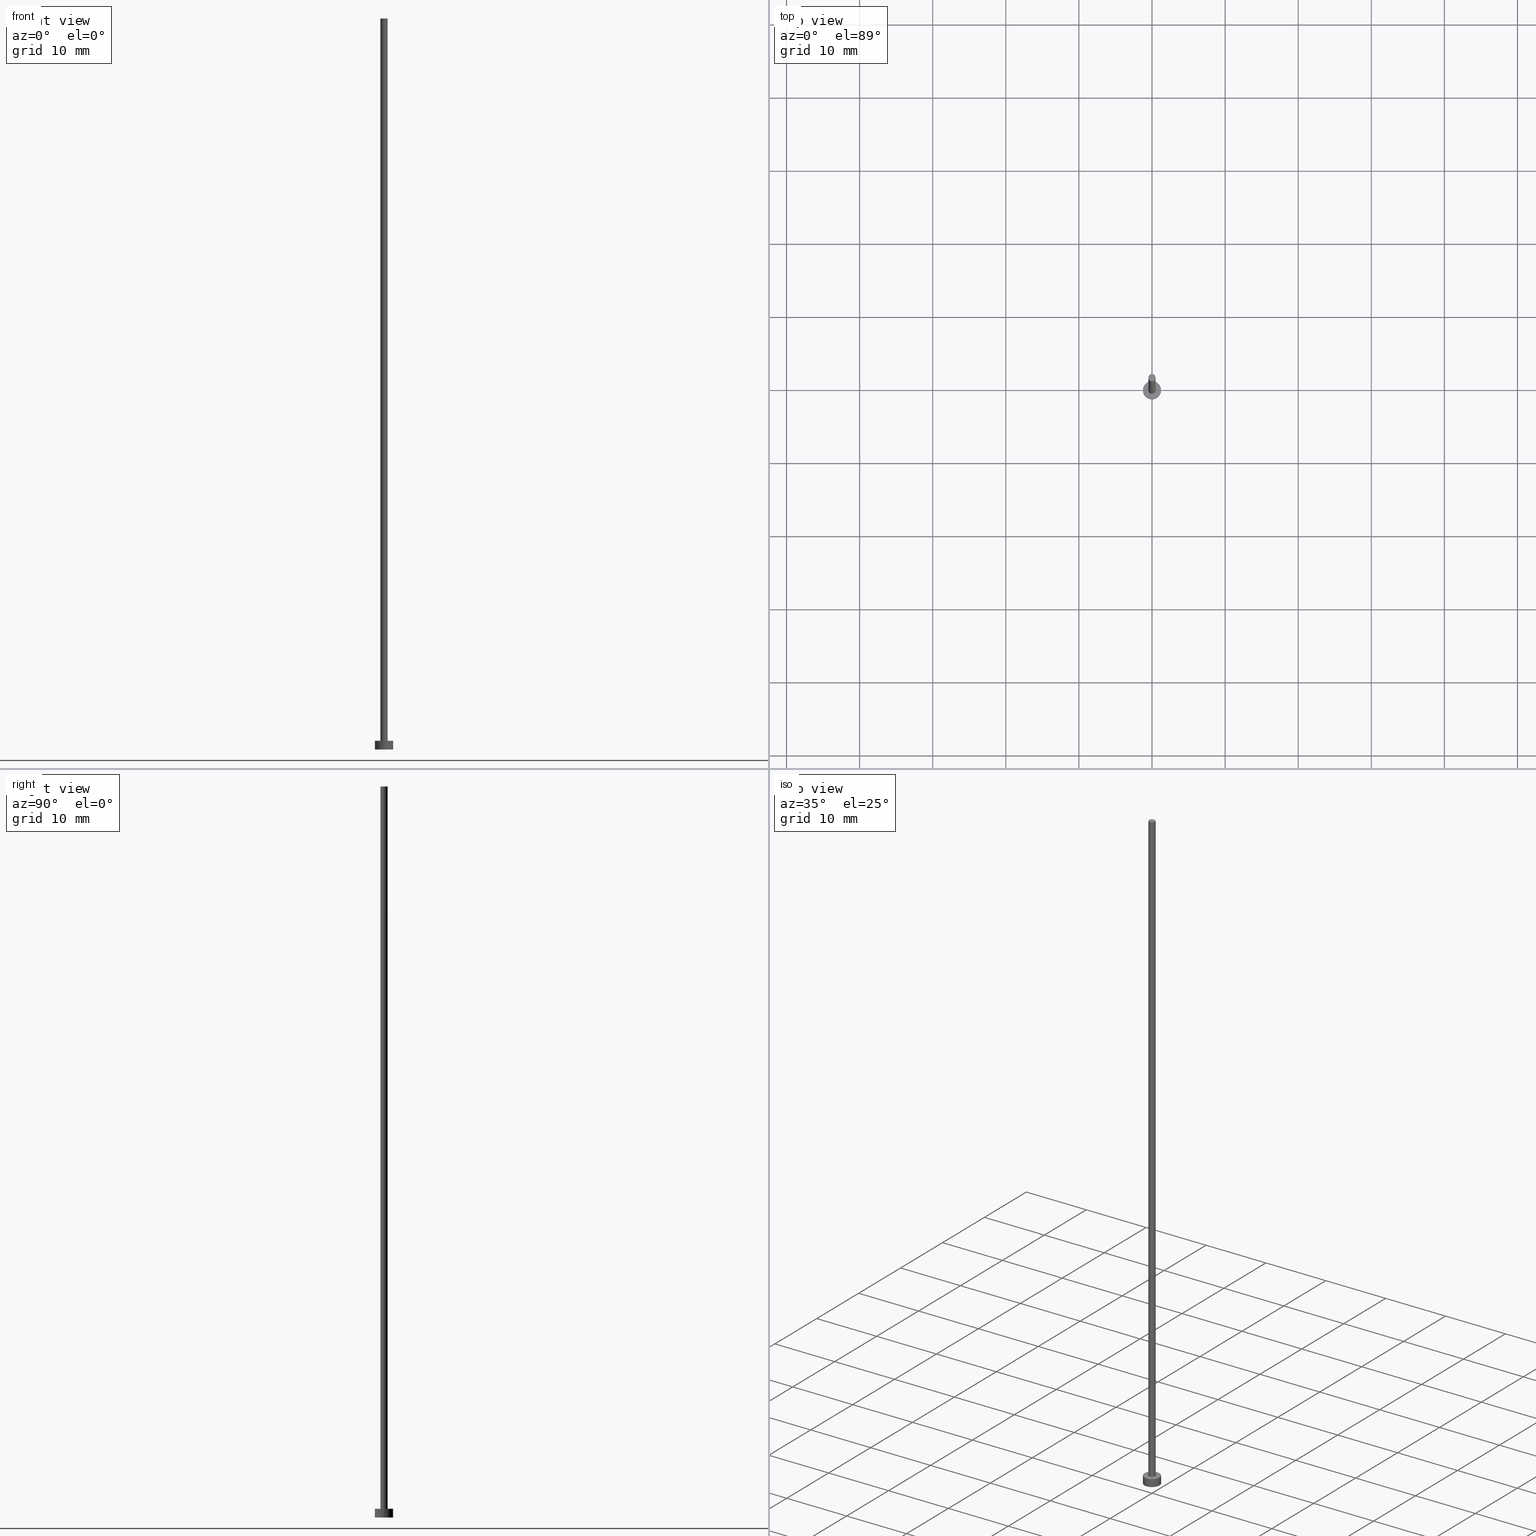
[diagram: canonical four-view strip — front | top / right | iso, engineering-drawing reading convention]
A machine part, canonical four-view strip (front | top / right | iso — engineering-drawing reading convention). The complete STEP part file that produces these views, byte-faithful:
ISO-10303-21;
HEADER;
FILE_DESCRIPTION (( 'STEP AP203' ),
    '1' );
FILE_NAME ('51a9.STEP',
    '2024-09-30T12:48:16',
    ( '' ),
    ( '' ),
    'SwSTEP 2.0',
    'SolidWorks 2019',
    '' );
FILE_SCHEMA (( 'CONFIG_CONTROL_DESIGN' ));
ENDSEC;

DATA;
#1 = PRODUCT_DEFINITION_FORMATION_WITH_SPECIFIED_SOURCE ( 'LIBOVOLN�', '', #7, .NOT_KNOWN. ) ;
#2 = EDGE_CURVE ( 'NONE', #143, #96, #196, .T. ) ;
#3 = SHAPE_DEFINITION_REPRESENTATION ( #151, #171 ) ;
#4 = CARTESIAN_POINT ( 'NONE',  ( 0.000000000000000000, 0.000000000000000000, 1.199999999999999956 ) ) ;
#5 = APPROVAL_STATUS ( 'not_yet_approved' ) ;
#6 = CARTESIAN_POINT ( 'NONE',  ( 1.250000000000000000, 1.530808498934191571E-16, 0.000000000000000000 ) ) ;
#7 = PRODUCT ( '51a9', '51a9', '', ( #246 ) ) ;
#8 = LOCAL_TIME ( 14, 48, 16.00000000000000000, #68 ) ;
#9 = PERSON_AND_ORGANIZATION_ROLE ( 'classification_officer' ) ;
#10 = DIRECTION ( 'NONE',  ( 1.000000000000000000, 0.000000000000000000, -0.000000000000000000 ) ) ;
#11 = DIRECTION ( 'NONE',  ( -1.000000000000000000, 0.000000000000000000, 0.000000000000000000 ) ) ;
#12 = CARTESIAN_POINT ( 'NONE',  ( 0.000000000000000000, 0.000000000000000000, 0.000000000000000000 ) ) ;
#13 = DATE_TIME_ROLE ( 'creation_date' ) ;
#14 = PERSON_AND_ORGANIZATION ( #67, #81 ) ;
#15 = VECTOR ( 'NONE', #44, 1000.000000000000000 ) ;
#16 = VERTEX_POINT ( 'NONE', #215 ) ;
#17 = ORIENTED_EDGE ( 'NONE', *, *, #2, .T. ) ;
#18 = APPROVAL_PERSON_ORGANIZATION ( #14, #56, #90 ) ;
#19 = LINE ( 'NONE', #37, #33 ) ;
#20 = FACE_OUTER_BOUND ( 'NONE', #234, .T. ) ;
#21 = CARTESIAN_POINT ( 'NONE',  ( -1.250000000000000000, 0.000000000000000000, 0.000000000000000000 ) ) ;
#22 = SECURITY_CLASSIFICATION_LEVEL ( 'unclassified' ) ;
#23 = CARTESIAN_POINT ( 'NONE',  ( 0.000000000000000000, 0.000000000000000000, 100.0000000000000000 ) ) ;
#24 = AXIS2_PLACEMENT_3D ( 'NONE', #27, #109, #148 ) ;
#25 = CC_DESIGN_DATE_AND_TIME_ASSIGNMENT ( #227, #13, ( #38 ) ) ;
#26 = FACE_OUTER_BOUND ( 'NONE', #229, .T. ) ;
#27 = CARTESIAN_POINT ( 'NONE',  ( 0.000000000000000000, 0.000000000000000000, 1.199999999999999956 ) ) ;
#28 = DIRECTION ( 'NONE',  ( 0.000000000000000000, 0.000000000000000000, 1.000000000000000000 ) ) ;
#29 = AXIS2_PLACEMENT_3D ( 'NONE', #30, #223, #106 ) ;
#30 = CARTESIAN_POINT ( 'NONE',  ( 0.000000000000000000, 0.000000000000000000, 0.000000000000000000 ) ) ;
#31 = APPLICATION_PROTOCOL_DEFINITION ( 'international standard', 'config_control_design', 1994, #178 ) ;
#32 = DIRECTION ( 'NONE',  ( 0.000000000000000000, 0.000000000000000000, 1.000000000000000000 ) ) ;
#33 = VECTOR ( 'NONE', #156, 1000.000000000000000 ) ;
#34 = PERSON_AND_ORGANIZATION ( #67, #81 ) ;
#35 = CIRCLE ( 'NONE', #52, 0.5000000000000000000 ) ;
#36 = UNCERTAINTY_MEASURE_WITH_UNIT (LENGTH_MEASURE( 1.000000000000000082E-05 ), #65, 'distance_accuracy_value', 'NONE');
#37 = CARTESIAN_POINT ( 'NONE',  ( 0.5000000000000000000, 6.123233995736766036E-17, 100.0000000000000000 ) ) ;
#38 = PRODUCT_DEFINITION ( 'NEZN�M�', '', #1, #191 ) ;
#39 = CYLINDRICAL_SURFACE ( 'NONE', #237, 0.5000000000000000000 ) ;
#40 = CIRCLE ( 'NONE', #186, 1.250000000000000000 ) ;
#41 = DIRECTION ( 'NONE',  ( -1.000000000000000000, 0.000000000000000000, 0.000000000000000000 ) ) ;
#42 = APPROVAL_DATE_TIME ( #199, #70 ) ;
#43 = CARTESIAN_POINT ( 'NONE',  ( 1.250000000000000000, 1.530808498934191571E-16, 1.199999999999999956 ) ) ;
#44 = DIRECTION ( 'NONE',  ( -0.000000000000000000, -0.000000000000000000, -1.000000000000000000 ) ) ;
#45 = CALENDAR_DATE ( 2024, 30, 9 ) ;
#46 = CYLINDRICAL_SURFACE ( 'NONE', #250, 0.5000000000000000000 ) ;
#47 = EDGE_CURVE ( 'NONE', #254, #95, #35, .T. ) ;
#48 = APPLICATION_PROTOCOL_DEFINITION ( 'international standard', 'config_control_design', 1994, #198 ) ;
#49 = PERSON_AND_ORGANIZATION ( #67, #81 ) ;
#50 = APPROVAL_STATUS ( 'not_yet_approved' ) ;
#51 = PERSON_AND_ORGANIZATION ( #67, #81 ) ;
#52 = AXIS2_PLACEMENT_3D ( 'NONE', #98, #217, #252 ) ;
#53 = SECURITY_CLASSIFICATION ( '', '', #22 ) ;
#54 = ORIENTED_EDGE ( 'NONE', *, *, #248, .T. ) ;
#55 = ORIENTED_EDGE ( 'NONE', *, *, #80, .T. ) ;
#56 = APPROVAL ( #50, 'NEUR�EN�' ) ;
#57 = CARTESIAN_POINT ( 'NONE',  ( 0.000000000000000000, 0.000000000000000000, 100.0000000000000000 ) ) ;
#58 = MANIFOLD_SOLID_BREP ( 'P�idat vysunut�m3', #214 ) ;
#59 = ORIENTED_EDGE ( 'NONE', *, *, #167, .F. ) ;
#60 = AXIS2_PLACEMENT_3D ( 'NONE', #107, #164, #11 ) ;
#61 = ORIENTED_EDGE ( 'NONE', *, *, #100, .F. ) ;
#62 = EDGE_CURVE ( 'NONE', #95, #173, #19, .T. ) ;
#63 = ORIENTED_EDGE ( 'NONE', *, *, #248, .F. ) ;
#64 = DIRECTION ( 'NONE',  ( 1.000000000000000000, 0.000000000000000000, 0.000000000000000000 ) ) ;
#65 =( LENGTH_UNIT ( ) NAMED_UNIT ( * ) SI_UNIT ( .MILLI., .METRE. ) );
#66 = ADVANCED_FACE ( 'NONE', ( #155 ), #39, .T. ) ;
#67 = PERSON ( 'NEUR�EN�', 'NEUR�EN�', 'NEUR�EN�', ('NEUR�EN�'), ('NEUR�EN�'), ('NEUR�EN�') ) ;
#68 = COORDINATED_UNIVERSAL_TIME_OFFSET ( 1, 0, .AHEAD. ) ;
#69 = CARTESIAN_POINT ( 'NONE',  ( 0.000000000000000000, 0.000000000000000000, 100.0000000000000000 ) ) ;
#70 = APPROVAL ( #5, 'NEUR�EN�' ) ;
#71 = PERSON_AND_ORGANIZATION_ROLE ( 'design_owner' ) ;
#72 = ORIENTED_EDGE ( 'NONE', *, *, #133, .F. ) ;
#73 = COORDINATED_UNIVERSAL_TIME_OFFSET ( 1, 0, .AHEAD. ) ;
#74 = ORIENTED_EDGE ( 'NONE', *, *, #2, .F. ) ;
#75 = AXIS2_PLACEMENT_3D ( 'NONE', #233, #236, #141 ) ;
#76 = DIRECTION ( 'NONE',  ( -0.000000000000000000, -0.000000000000000000, -1.000000000000000000 ) ) ;
#77 = ORIENTED_EDGE ( 'NONE', *, *, #47, .T. ) ;
#78 = ORIENTED_EDGE ( 'NONE', *, *, #105, .F. ) ;
#79 = PLANE ( 'NONE',  #75 ) ;
#80 = EDGE_CURVE ( 'NONE', #143, #16, #103, .T. ) ;
#81 = ORGANIZATION ( 'NEUR�EN�', 'NEUR�EN�', '' ) ;
#82 = DIRECTION ( 'NONE',  ( 0.000000000000000000, 0.000000000000000000, 1.000000000000000000 ) ) ;
#83 = CC_DESIGN_APPROVAL ( #70, ( #53 ) ) ;
#84 = DIRECTION ( 'NONE',  ( -1.000000000000000000, 0.000000000000000000, 0.000000000000000000 ) ) ;
#85 = PLANE ( 'NONE',  #97 ) ;
#86 = CARTESIAN_POINT ( 'NONE',  ( -0.5000000000000000000, 0.000000000000000000, 100.0000000000000000 ) ) ;
#87 = CARTESIAN_POINT ( 'NONE',  ( 0.000000000000000000, 0.000000000000000000, 1.199999999999999956 ) ) ;
#88 = CARTESIAN_POINT ( 'NONE',  ( 0.5000000000000000000, 6.123233995736766036E-17, 1.199999999999999956 ) ) ;
#89 = CC_DESIGN_PERSON_AND_ORGANIZATION_ASSIGNMENT ( #34, #113, ( #1 ) ) ;
#90 = APPROVAL_ROLE ( '' ) ;
#91 = APPROVAL_ROLE ( '' ) ;
#92 = ADVANCED_FACE ( 'NONE', ( #20 ), #79, .F. ) ;
#93 = EDGE_LOOP ( 'NONE', ( #55, #158 ) ) ;
#94 = EDGE_LOOP ( 'NONE', ( #77, #135 ) ) ;
#95 = VERTEX_POINT ( 'NONE', #117 ) ;
#96 = VERTEX_POINT ( 'NONE', #21 ) ;
#97 = AXIS2_PLACEMENT_3D ( 'NONE', #181, #187, #125 ) ;
#98 = CARTESIAN_POINT ( 'NONE',  ( 0.000000000000000000, 0.000000000000000000, 100.0000000000000000 ) ) ;
#99 = CARTESIAN_POINT ( 'NONE',  ( -1.250000000000000000, 0.000000000000000000, 1.199999999999999956 ) ) ;
#100 = EDGE_CURVE ( 'NONE', #249, #96, #244, .T. ) ;
#101 = ORIENTED_EDGE ( 'NONE', *, *, #167, .T. ) ;
#102 = APPROVAL_ROLE ( '' ) ;
#103 = CIRCLE ( 'NONE', #218, 1.250000000000000000 ) ;
#104 = DIRECTION ( 'NONE',  ( -1.000000000000000000, 0.000000000000000000, 0.000000000000000000 ) ) ;
#105 = EDGE_CURVE ( 'NONE', #16, #249, #161, .T. ) ;
#106 = DIRECTION ( 'NONE',  ( 1.000000000000000000, 0.000000000000000000, 0.000000000000000000 ) ) ;
#107 = CARTESIAN_POINT ( 'NONE',  ( 0.000000000000000000, 0.000000000000000000, 1.199999999999999956 ) ) ;
#108 = DIRECTION ( 'NONE',  ( -0.000000000000000000, -0.000000000000000000, -1.000000000000000000 ) ) ;
#109 = DIRECTION ( 'NONE',  ( 0.000000000000000000, 0.000000000000000000, 1.000000000000000000 ) ) ;
#110 = PERSON_AND_ORGANIZATION ( #67, #81 ) ;
#111 = CALENDAR_DATE ( 2024, 30, 9 ) ;
#112 = CC_DESIGN_APPROVAL ( #226, ( #1 ) ) ;
#113 = PERSON_AND_ORGANIZATION_ROLE ( 'design_supplier' ) ;
#114 = ORIENTED_EDGE ( 'NONE', *, *, #62, .F. ) ;
#115 = LOCAL_TIME ( 14, 48, 16.00000000000000000, #228 ) ;
#116 = EDGE_LOOP ( 'NONE', ( #114, #255, #54, #138 ) ) ;
#117 = CARTESIAN_POINT ( 'NONE',  ( 0.5000000000000000000, 6.123233995736766036E-17, 100.0000000000000000 ) ) ;
#118 = EDGE_LOOP ( 'NONE', ( #78, #177, #17, #101 ) ) ;
#119 = CIRCLE ( 'NONE', #24, 0.5000000000000000000 ) ;
#120 = PRODUCT_RELATED_PRODUCT_CATEGORY ( 'detail', '', ( #7 ) ) ;
#121 = CARTESIAN_POINT ( 'NONE',  ( 0.000000000000000000, 0.000000000000000000, 1.199999999999999956 ) ) ;
#122 = FACE_BOUND ( 'NONE', #192, .T. ) ;
#123 = CARTESIAN_POINT ( 'NONE',  ( 0.000000000000000000, 0.000000000000000000, 1.199999999999999956 ) ) ;
#124 = CARTESIAN_POINT ( 'NONE',  ( 0.000000000000000000, 0.000000000000000000, 100.0000000000000000 ) ) ;
#125 = DIRECTION ( 'NONE',  ( 1.000000000000000000, 0.000000000000000000, -0.000000000000000000 ) ) ;
#126 = DIRECTION ( 'NONE',  ( 0.000000000000000000, 0.000000000000000000, 1.000000000000000000 ) ) ;
#127 = CIRCLE ( 'NONE', #144, 0.5000000000000000000 ) ;
#128 = APPROVAL_DATE_TIME ( #230, #226 ) ;
#129 = PERSON_AND_ORGANIZATION_ROLE ( 'creator' ) ;
#130 = ADVANCED_FACE ( 'NONE', ( #122, #195 ), #85, .T. ) ;
#131 = DATE_AND_TIME ( #210, #115 ) ;
#132 = LOCAL_TIME ( 14, 48, 16.00000000000000000, #73 ) ;
#133 = EDGE_CURVE ( 'NONE', #173, #251, #153, .T. ) ;
#134 = AXIS2_PLACEMENT_3D ( 'NONE', #87, #28, #163 ) ;
#135 = ORIENTED_EDGE ( 'NONE', *, *, #219, .T. ) ;
#136 = ORIENTED_EDGE ( 'NONE', *, *, #137, .F. ) ;
#137 = EDGE_CURVE ( 'NONE', #251, #173, #119, .T. ) ;
#138 = ORIENTED_EDGE ( 'NONE', *, *, #137, .T. ) ;
#139 = AXIS2_PLACEMENT_3D ( 'NONE', #4, #145, #104 ) ;
#140 = CC_DESIGN_SECURITY_CLASSIFICATION ( #53, ( #1 ) ) ;
#141 = DIRECTION ( 'NONE',  ( 1.000000000000000000, 0.000000000000000000, -0.000000000000000000 ) ) ;
#142 = DATE_TIME_ROLE ( 'classification_date' ) ;
#143 = VERTEX_POINT ( 'NONE', #243 ) ;
#144 = AXIS2_PLACEMENT_3D ( 'NONE', #69, #147, #64 ) ;
#145 = DIRECTION ( 'NONE',  ( -0.000000000000000000, -0.000000000000000000, -1.000000000000000000 ) ) ;
#146 = COORDINATED_UNIVERSAL_TIME_OFFSET ( 1, 0, .AHEAD. ) ;
#147 = DIRECTION ( 'NONE',  ( 0.000000000000000000, 0.000000000000000000, 1.000000000000000000 ) ) ;
#148 = DIRECTION ( 'NONE',  ( 1.000000000000000000, 0.000000000000000000, 0.000000000000000000 ) ) ;
#149 = APPROVAL_PERSON_ORGANIZATION ( #49, #226, #91 ) ;
#150 = EDGE_CURVE ( 'NONE', #16, #143, #40, .T. ) ;
#151 = PRODUCT_DEFINITION_SHAPE ( 'NONE', 'NONE',  #38 ) ;
#152 = COORDINATED_UNIVERSAL_TIME_OFFSET ( 1, 0, .AHEAD. ) ;
#153 = CIRCLE ( 'NONE', #134, 0.5000000000000000000 ) ;
#154 = CC_DESIGN_PERSON_AND_ORGANIZATION_ASSIGNMENT ( #168, #9, ( #53 ) ) ;
#155 = FACE_OUTER_BOUND ( 'NONE', #235, .T. ) ;
#156 = DIRECTION ( 'NONE',  ( -0.000000000000000000, -0.000000000000000000, -1.000000000000000000 ) ) ;
#157 = ORIENTED_EDGE ( 'NONE', *, *, #62, .T. ) ;
#158 = ORIENTED_EDGE ( 'NONE', *, *, #150, .T. ) ;
#159 = DATE_AND_TIME ( #185, #160 ) ;
#160 = LOCAL_TIME ( 14, 48, 16.00000000000000000, #146 ) ;
#161 = LINE ( 'NONE', #43, #232 ) ;
#162 = ADVANCED_FACE ( 'NONE', ( #26 ), #205, .T. ) ;
#163 = DIRECTION ( 'NONE',  ( 1.000000000000000000, 0.000000000000000000, 0.000000000000000000 ) ) ;
#164 = DIRECTION ( 'NONE',  ( -0.000000000000000000, -0.000000000000000000, -1.000000000000000000 ) ) ;
#165 = VECTOR ( 'NONE', #76, 1000.000000000000000 ) ;
#166 =( NAMED_UNIT ( * ) PLANE_ANGLE_UNIT ( ) SI_UNIT ( $, .RADIAN. ) );
#167 = EDGE_CURVE ( 'NONE', #96, #249, #247, .T. ) ;
#168 = PERSON_AND_ORGANIZATION ( #67, #81 ) ;
#169 = LINE ( 'NONE', #239, #15 ) ;
#170 = PERSON_AND_ORGANIZATION ( #67, #81 ) ;
#171 = ADVANCED_BREP_SHAPE_REPRESENTATION ( '51a9', ( #58, #225 ), #193 ) ;
#172 = ORIENTED_EDGE ( 'NONE', *, *, #100, .T. ) ;
#173 = VERTEX_POINT ( 'NONE', #88 ) ;
#174 = AXIS2_PLACEMENT_3D ( 'NONE', #23, #202, #10 ) ;
#175 = LOCAL_TIME ( 14, 48, 16.00000000000000000, #152 ) ;
#176 = ORIENTED_EDGE ( 'NONE', *, *, #105, .T. ) ;
#177 = ORIENTED_EDGE ( 'NONE', *, *, #80, .F. ) ;
#178 = APPLICATION_CONTEXT ( 'configuration controlled 3d designs of mechanical parts and assemblies' ) ;
#179 = CARTESIAN_POINT ( 'NONE',  ( 0.000000000000000000, 0.000000000000000000, 0.000000000000000000 ) ) ;
#180 = PERSON_AND_ORGANIZATION ( #67, #81 ) ;
#181 = CARTESIAN_POINT ( 'NONE',  ( 0.000000000000000000, 0.000000000000000000, 1.199999999999999956 ) ) ;
#182 = FACE_OUTER_BOUND ( 'NONE', #116, .T. ) ;
#183 = CC_DESIGN_PERSON_AND_ORGANIZATION_ASSIGNMENT ( #110, #71, ( #7 ) ) ;
#184 = FACE_OUTER_BOUND ( 'NONE', #94, .T. ) ;
#185 = CALENDAR_DATE ( 2024, 30, 9 ) ;
#186 = AXIS2_PLACEMENT_3D ( 'NONE', #123, #126, #207 ) ;
#187 = DIRECTION ( 'NONE',  ( 0.000000000000000000, 0.000000000000000000, 1.000000000000000000 ) ) ;
#188 = FACE_OUTER_BOUND ( 'NONE', #118, .T. ) ;
#189 = APPROVAL_DATE_TIME ( #131, #56 ) ;
#190 = CALENDAR_DATE ( 2024, 30, 9 ) ;
#191 = DESIGN_CONTEXT ( 'detailed design', #178, 'design' ) ;
#192 = EDGE_LOOP ( 'NONE', ( #136, #72 ) ) ;
#193 =( GEOMETRIC_REPRESENTATION_CONTEXT ( 3 ) GLOBAL_UNCERTAINTY_ASSIGNED_CONTEXT ( ( #36 ) ) GLOBAL_UNIT_ASSIGNED_CONTEXT ( ( #65, #166, #242 ) ) REPRESENTATION_CONTEXT ( 'NONE', 'WORKASPACE' ) );
#194 = DIRECTION ( 'NONE',  ( -0.000000000000000000, -0.000000000000000000, -1.000000000000000000 ) ) ;
#195 = FACE_OUTER_BOUND ( 'NONE', #93, .T. ) ;
#196 = LINE ( 'NONE', #99, #165 ) ;
#197 = DIRECTION ( 'NONE',  ( 1.000000000000000000, 0.000000000000000000, 0.000000000000000000 ) ) ;
#198 = APPLICATION_CONTEXT ( 'configuration controlled 3d designs of mechanical parts and assemblies' ) ;
#199 = DATE_AND_TIME ( #45, #8 ) ;
#200 = DIRECTION ( 'NONE',  ( 0.000000000000000000, 0.000000000000000000, 1.000000000000000000 ) ) ;
#201 = CC_DESIGN_DATE_AND_TIME_ASSIGNMENT ( #159, #142, ( #53 ) ) ;
#202 = DIRECTION ( 'NONE',  ( 0.000000000000000000, 0.000000000000000000, 1.000000000000000000 ) ) ;
#203 = ADVANCED_FACE ( 'NONE', ( #188 ), #224, .T. ) ;
#204 = PLANE ( 'NONE',  #174 ) ;
#205 = CYLINDRICAL_SURFACE ( 'NONE', #139, 1.250000000000000000 ) ;
#206 = AXIS2_PLACEMENT_3D ( 'NONE', #179, #82, #220 ) ;
#207 = DIRECTION ( 'NONE',  ( 1.000000000000000000, 0.000000000000000000, 0.000000000000000000 ) ) ;
#208 = APPROVAL_STATUS ( 'not_yet_approved' ) ;
#209 = ADVANCED_FACE ( 'NONE', ( #182 ), #46, .T. ) ;
#210 = CALENDAR_DATE ( 2024, 30, 9 ) ;
#211 = PERSON_AND_ORGANIZATION_ROLE ( 'creator' ) ;
#212 = CC_DESIGN_PERSON_AND_ORGANIZATION_ASSIGNMENT ( #51, #211, ( #1 ) ) ;
#213 = ORIENTED_EDGE ( 'NONE', *, *, #133, .T. ) ;
#214 = CLOSED_SHELL ( 'NONE', ( #66, #162, #203, #130, #92, #209, #231 ) ) ;
#215 = CARTESIAN_POINT ( 'NONE',  ( 1.250000000000000000, 1.530808498934191571E-16, 1.199999999999999956 ) ) ;
#216 = ORIENTED_EDGE ( 'NONE', *, *, #150, .F. ) ;
#217 = DIRECTION ( 'NONE',  ( 0.000000000000000000, 0.000000000000000000, 1.000000000000000000 ) ) ;
#218 = AXIS2_PLACEMENT_3D ( 'NONE', #121, #200, #197 ) ;
#219 = EDGE_CURVE ( 'NONE', #95, #254, #127, .T. ) ;
#220 = DIRECTION ( 'NONE',  ( 1.000000000000000000, 0.000000000000000000, 0.000000000000000000 ) ) ;
#221 = ORIENTED_EDGE ( 'NONE', *, *, #219, .F. ) ;
#222 = APPROVAL_PERSON_ORGANIZATION ( #180, #70, #102 ) ;
#223 = DIRECTION ( 'NONE',  ( 0.000000000000000000, 0.000000000000000000, 1.000000000000000000 ) ) ;
#224 = CYLINDRICAL_SURFACE ( 'NONE', #60, 1.250000000000000000 ) ;
#225 = AXIS2_PLACEMENT_3D ( 'NONE', #12, #32, #245 ) ;
#226 = APPROVAL ( #208, 'NEUR�EN�' ) ;
#227 = DATE_AND_TIME ( #111, #132 ) ;
#228 = COORDINATED_UNIVERSAL_TIME_OFFSET ( 1, 0, .AHEAD. ) ;
#229 = EDGE_LOOP ( 'NONE', ( #216, #176, #172, #74 ) ) ;
#230 = DATE_AND_TIME ( #190, #175 ) ;
#231 = ADVANCED_FACE ( 'NONE', ( #184 ), #204, .T. ) ;
#232 = VECTOR ( 'NONE', #238, 1000.000000000000000 ) ;
#233 = CARTESIAN_POINT ( 'NONE',  ( 0.000000000000000000, 0.000000000000000000, 0.000000000000000000 ) ) ;
#234 = EDGE_LOOP ( 'NONE', ( #59, #61 ) ) ;
#235 = EDGE_LOOP ( 'NONE', ( #221, #157, #213, #63 ) ) ;
#236 = DIRECTION ( 'NONE',  ( 0.000000000000000000, 0.000000000000000000, 1.000000000000000000 ) ) ;
#237 = AXIS2_PLACEMENT_3D ( 'NONE', #57, #194, #41 ) ;
#238 = DIRECTION ( 'NONE',  ( -0.000000000000000000, -0.000000000000000000, -1.000000000000000000 ) ) ;
#239 = CARTESIAN_POINT ( 'NONE',  ( -0.5000000000000000000, 0.000000000000000000, 100.0000000000000000 ) ) ;
#240 = CARTESIAN_POINT ( 'NONE',  ( -0.5000000000000000000, 0.000000000000000000, 1.199999999999999956 ) ) ;
#241 = CC_DESIGN_APPROVAL ( #56, ( #38 ) ) ;
#242 =( NAMED_UNIT ( * ) SI_UNIT ( $, .STERADIAN. ) SOLID_ANGLE_UNIT ( ) );
#243 = CARTESIAN_POINT ( 'NONE',  ( -1.250000000000000000, 0.000000000000000000, 1.199999999999999956 ) ) ;
#244 = CIRCLE ( 'NONE', #206, 1.250000000000000000 ) ;
#245 = DIRECTION ( 'NONE',  ( 1.000000000000000000, 0.000000000000000000, 0.000000000000000000 ) ) ;
#246 = MECHANICAL_CONTEXT ( 'NONE', #198, 'mechanical' ) ;
#247 = CIRCLE ( 'NONE', #29, 1.250000000000000000 ) ;
#248 = EDGE_CURVE ( 'NONE', #254, #251, #169, .T. ) ;
#249 = VERTEX_POINT ( 'NONE', #6 ) ;
#250 = AXIS2_PLACEMENT_3D ( 'NONE', #124, #108, #84 ) ;
#251 = VERTEX_POINT ( 'NONE', #240 ) ;
#252 = DIRECTION ( 'NONE',  ( 1.000000000000000000, 0.000000000000000000, 0.000000000000000000 ) ) ;
#253 = CC_DESIGN_PERSON_AND_ORGANIZATION_ASSIGNMENT ( #170, #129, ( #38 ) ) ;
#254 = VERTEX_POINT ( 'NONE', #86 ) ;
#255 = ORIENTED_EDGE ( 'NONE', *, *, #47, .F. ) ;
ENDSEC;
END-ISO-10303-21;
